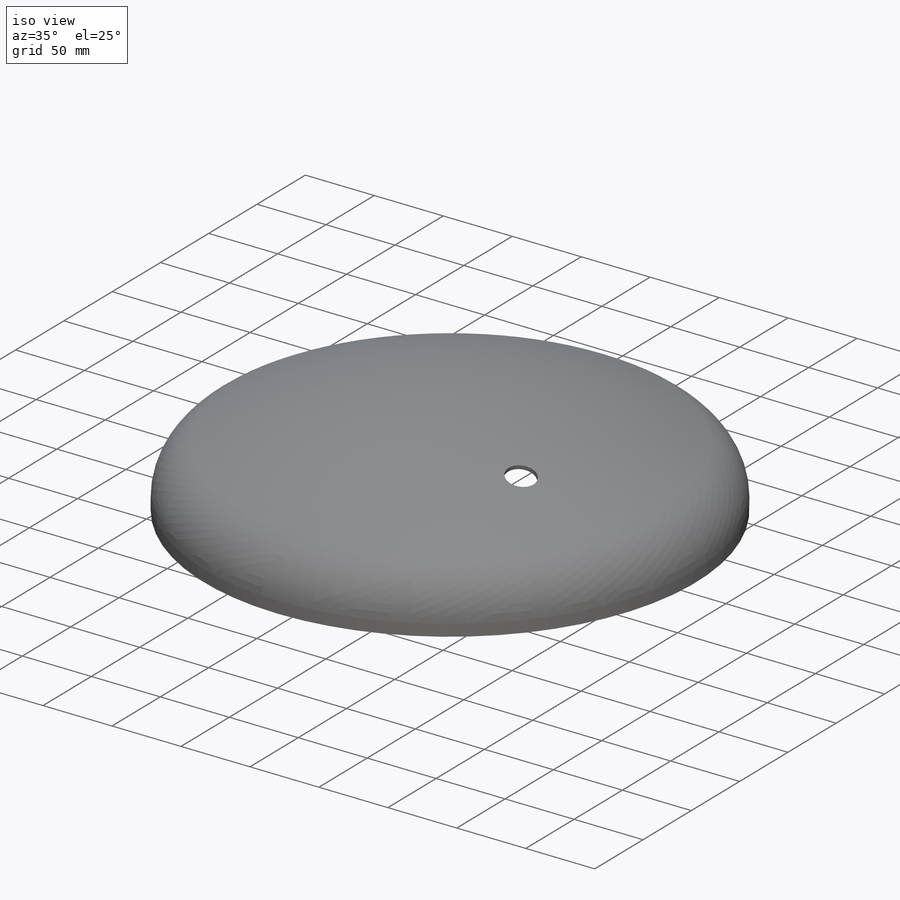
[diagram: iso view]
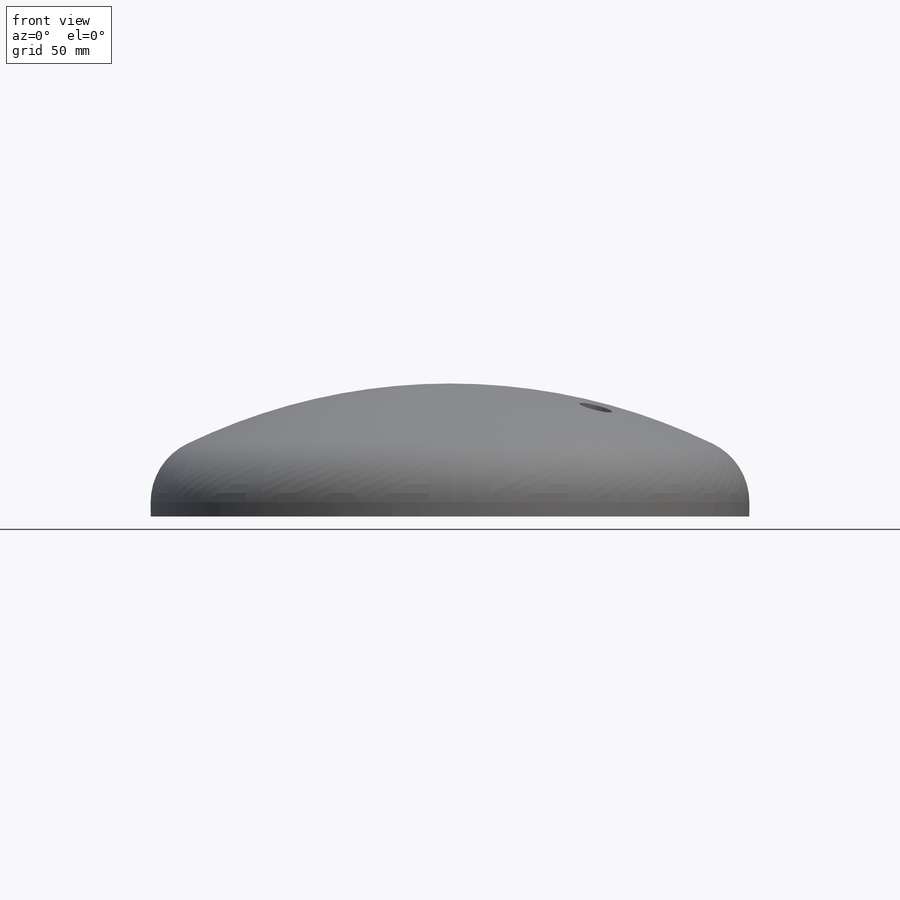
[diagram: front view]
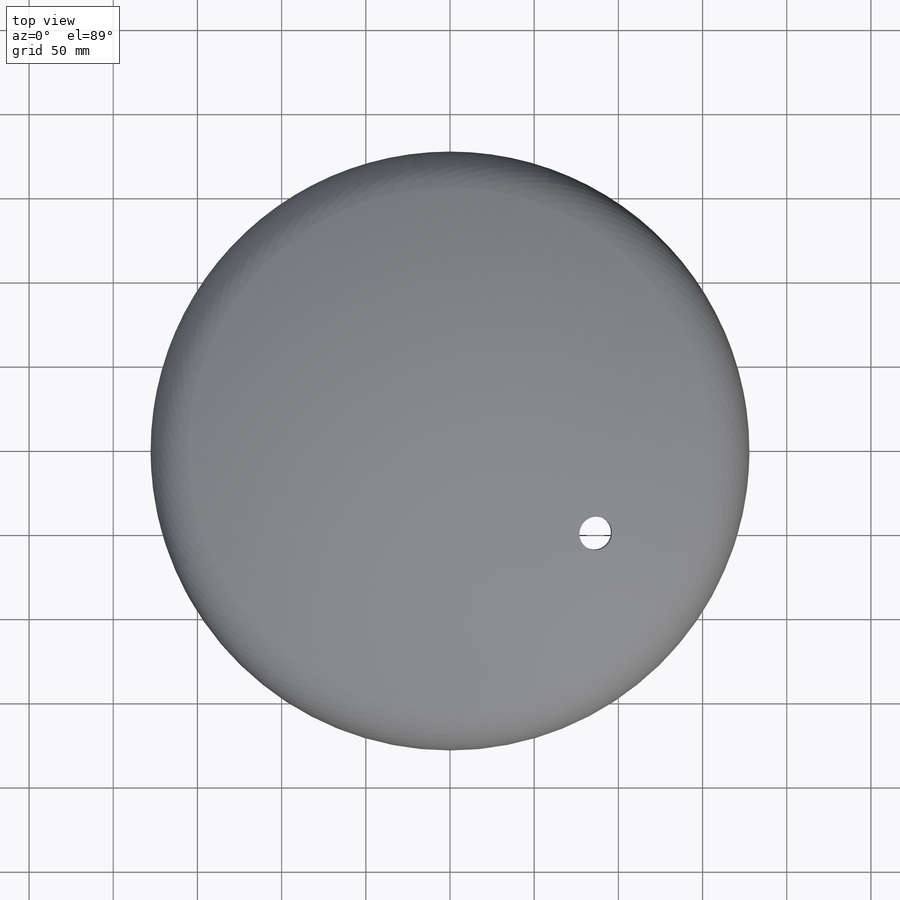
[diagram: top view]
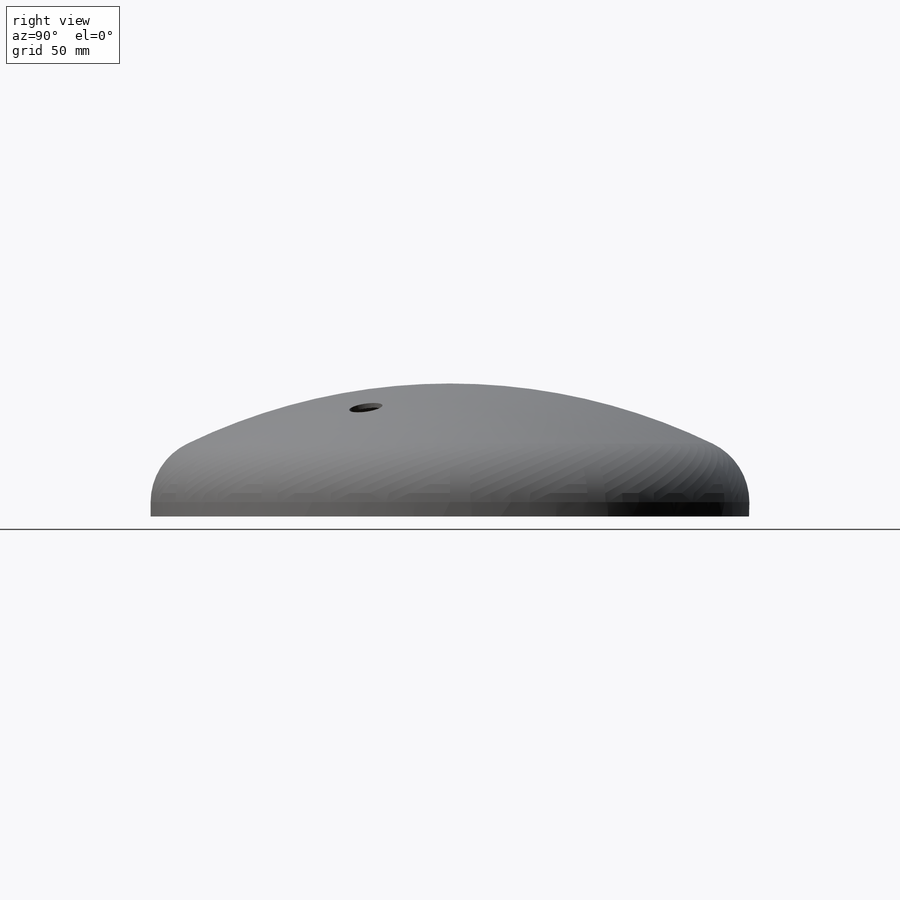
[diagram: right view]
SOLIDWORKS PART (.sldprt)
format: sldprt  version: not decoded by parser v0  size: 386,560 bytes
history: native  units: mm
features: plane x3, sketch x3, material x1, revolve x1, hole x1 (+11 scaffold rows collapsed)
feature tree (20):
  scaffold x11  (default folders/planes/origin — collapsed)
  material  "Nichtrostender Chromstahl"
  plane  "Ebene vorne"
  plane  "Ebene oben"
  plane  "Ebene rechts"
  sketch  "Skizze1"  dims[c1.D1=2.1mm c1.D2=10.0mm c1.R1=355.6mm c1.R2=35.6mm c2.D2=~8.537745mm c2.H3=79.0mm c2.D=355.6mm c2.T=3.0mm]
  revolve  "Rotation1"  Angle=360deg
  hole  "Ø20.0 (20) Durchmesser Bohrung1"  Diameter=20mm Depth=3mm
  sketch  "3D-Skizze1"  dims[c1.D1=~449.078167mm c1.D2=~449.078167mm c2.D1=200.0mm c2.D2=100.0mm c3.D2=30.0deg]
  sketch  "Skizze2"  dims[hole-wizard template sketch: 59 standard entries collapsed; hole parameters kept: c18.Bohrerdurchmesser=20.0mm c18.Bohrungstiefe=3.0mm]
decode coverage: 5 of 5 modeling features carry decoded parameters
note: ~ marks probable driven/reference dimensions
note: suppression state not decoded; provenance and decode notes live in map.json
